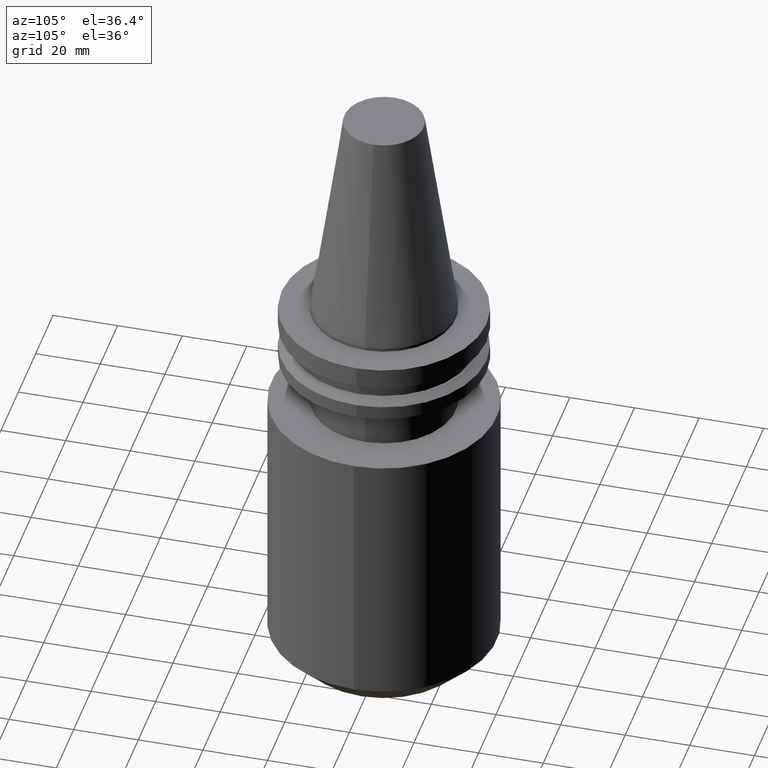
[diagram: clean part render]
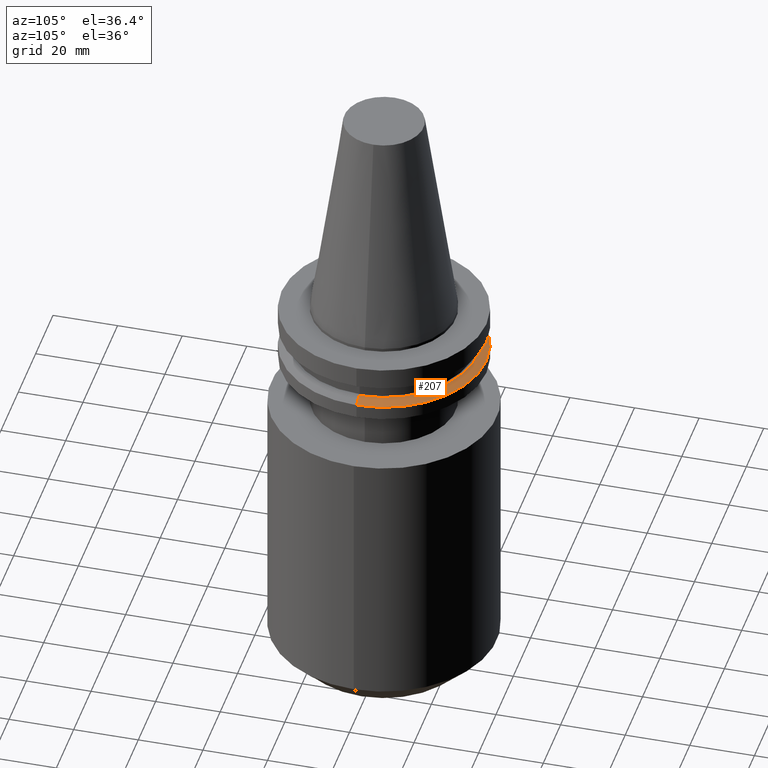
[diagram: same view with one face highlighted and labeled with its STEP entity id]
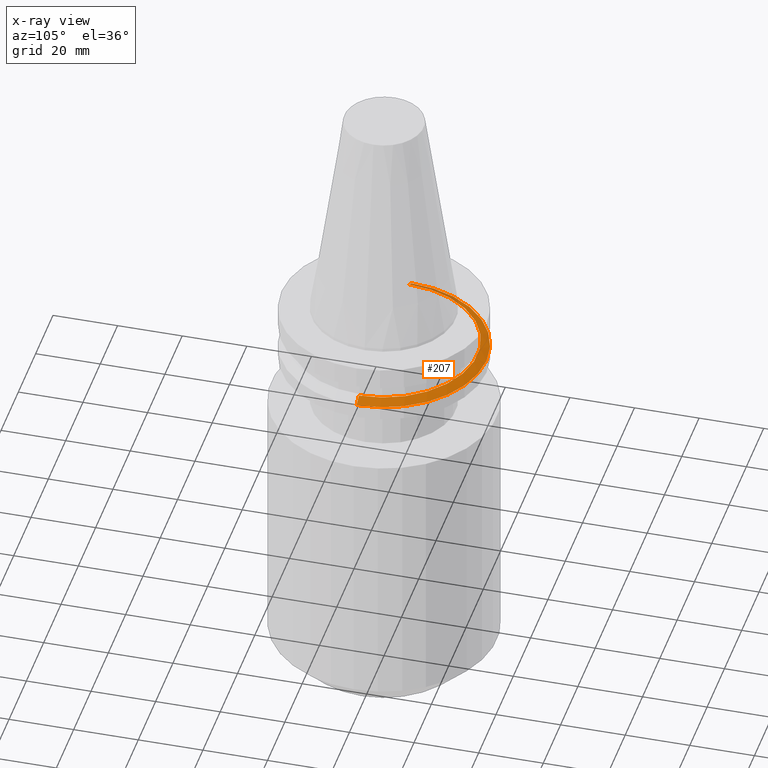
[diagram: x-ray of the same camera — body ghosted, the highlighted face saturated]
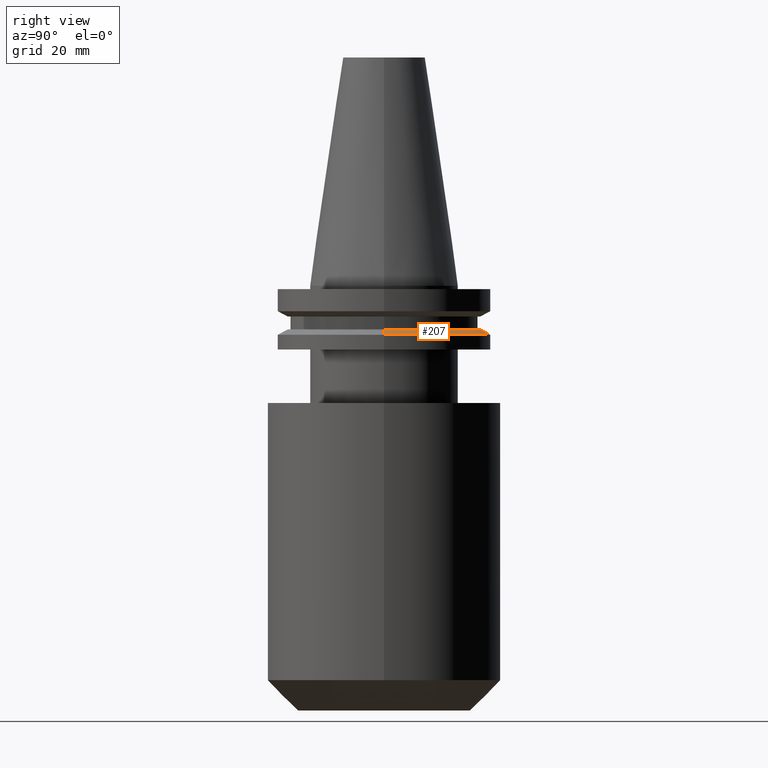
[diagram: same view with one face highlighted and labeled with its STEP entity id]
A machine part, auxiliary view. The second image highlights one B-rep face of the part: STEP entity #207.
The next image is the same camera in x-ray: the body ghosted, the highlighted face saturated — about 5% of this face is hidden behind the body in this view.
A second angle (right view) of the same face is appended — the face is thin or edge-on in the first view.
In plain terms, the highlighted conical surface has half-angle 60 deg.
Its self-contained STEP definition (entity closure, byte-faithful):
#4 = AXIS2_PLACEMENT_3D ( 'NONE', #124, #389, #844 ) ;
#18 = AXIS2_PLACEMENT_3D ( 'NONE', #815, #232, #483 ) ;
#23 = FACE_OUTER_BOUND ( 'NONE', #355, .T. ) ;
#28 = CARTESIAN_POINT ( 'NONE',  ( -31.75000000000000000, 3.888253587292846476E-15, -14.65472339340266572 ) ) ;
#43 = CARTESIAN_POINT ( 'NONE',  ( -31.75000000000000000, 0.000000000000000000, -14.65472339340266572 ) ) ;
#90 = CARTESIAN_POINT ( 'NONE',  ( 31.75000000000000000, 0.000000000000000000, -14.65472339340266572 ) ) ;
#124 = CARTESIAN_POINT ( 'NONE',  ( 0.000000000000000000, 0.000000000000000000, -14.65472339340266572 ) ) ;
#191 = CIRCLE ( 'NONE', #4, 31.75000000000000000 ) ;
#194 = VERTEX_POINT ( 'NONE', #302 ) ;
#198 = CARTESIAN_POINT ( 'NONE',  ( 31.75000000000000000, 3.888253587292846476E-15, -14.65472339340266572 ) ) ;
#207 = ADVANCED_FACE ( 'NONE', ( #23 ), #585, .T. ) ;
#222 = VECTOR ( 'NONE', #673, 1000.000000000000000 ) ;
#232 = DIRECTION ( 'NONE',  ( 0.000000000000000000, 0.000000000000000000, -1.000000000000000000 ) ) ;
#251 = VECTOR ( 'NONE', #622, 1000.000000000000000 ) ;
#265 = LINE ( 'NONE', #198, #222 ) ;
#297 = DIRECTION ( 'NONE',  ( 1.000000000000000000, 0.000000000000000000, 0.000000000000000000 ) ) ;
#302 = CARTESIAN_POINT ( 'NONE',  ( -28.97919780457008088, 0.000000000000000000, -13.05499999999999794 ) ) ;
#306 = EDGE_CURVE ( 'NONE', #539, #194, #731, .T. ) ;
#331 = EDGE_CURVE ( 'NONE', #194, #828, #358, .T. ) ;
#346 = ORIENTED_EDGE ( 'NONE', *, *, #306, .F. ) ;
#355 = EDGE_LOOP ( 'NONE', ( #346, #706, #456, #583 ) ) ;
#358 = LINE ( 'NONE', #43, #251 ) ;
#372 = CARTESIAN_POINT ( 'NONE',  ( 28.97919780457008088, 3.718590885307660666E-15, -13.05499999999999794 ) ) ;
#389 = DIRECTION ( 'NONE',  ( -0.000000000000000000, -0.000000000000000000, 1.000000000000000000 ) ) ;
#405 = CARTESIAN_POINT ( 'NONE',  ( 0.000000000000000000, 0.000000000000000000, -13.05499999999999794 ) ) ;
#420 = DIRECTION ( 'NONE',  ( -0.000000000000000000, -0.000000000000000000, 1.000000000000000000 ) ) ;
#456 = ORIENTED_EDGE ( 'NONE', *, *, #497, .T. ) ;
#483 = DIRECTION ( 'NONE',  ( -1.000000000000000000, 0.000000000000000000, 0.000000000000000000 ) ) ;
#497 = EDGE_CURVE ( 'NONE', #611, #828, #191, .T. ) ;
#539 = VERTEX_POINT ( 'NONE', #372 ) ;
#583 = ORIENTED_EDGE ( 'NONE', *, *, #331, .F. ) ;
#585 = CONICAL_SURFACE ( 'NONE', #18, 31.75000000000000000, 1.047197551196597853 ) ;
#609 = EDGE_CURVE ( 'NONE', #539, #611, #265, .T. ) ;
#611 = VERTEX_POINT ( 'NONE', #90 ) ;
#622 = DIRECTION ( 'NONE',  ( -0.8660254037844387076, 0.000000000000000000, -0.4999999999999998890 ) ) ;
#673 = DIRECTION ( 'NONE',  ( 0.8660254037844387076, 1.060575238724906915E-16, -0.4999999999999998890 ) ) ;
#706 = ORIENTED_EDGE ( 'NONE', *, *, #609, .T. ) ;
#718 = AXIS2_PLACEMENT_3D ( 'NONE', #405, #420, #297 ) ;
#731 = CIRCLE ( 'NONE', #718, 28.97919780457008088 ) ;
#815 = CARTESIAN_POINT ( 'NONE',  ( 0.000000000000000000, 0.000000000000000000, -14.65472339340266572 ) ) ;
#828 = VERTEX_POINT ( 'NONE', #28 ) ;
#844 = DIRECTION ( 'NONE',  ( 1.000000000000000000, 0.000000000000000000, 0.000000000000000000 ) ) ;